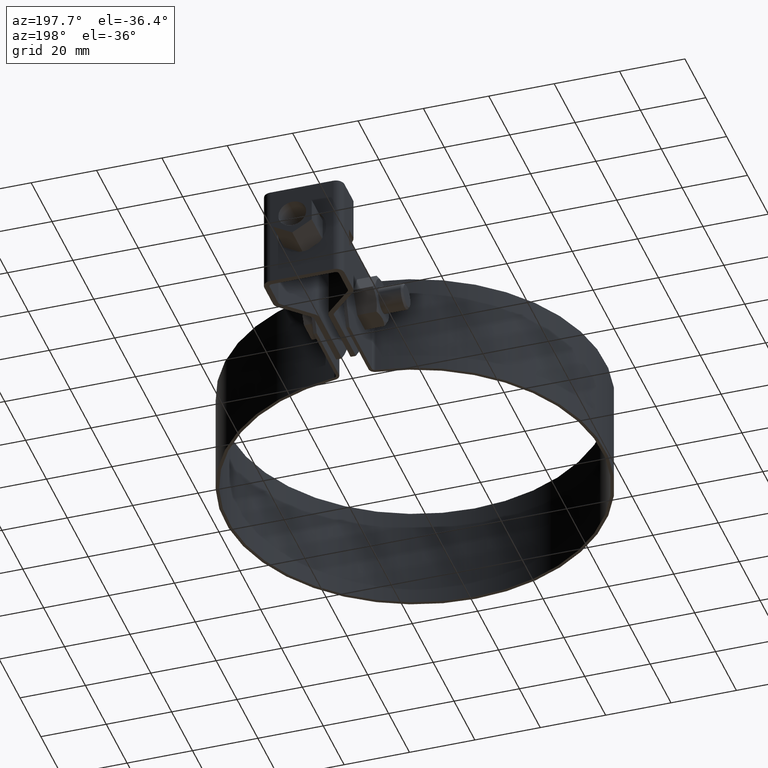
[diagram: clean part render]
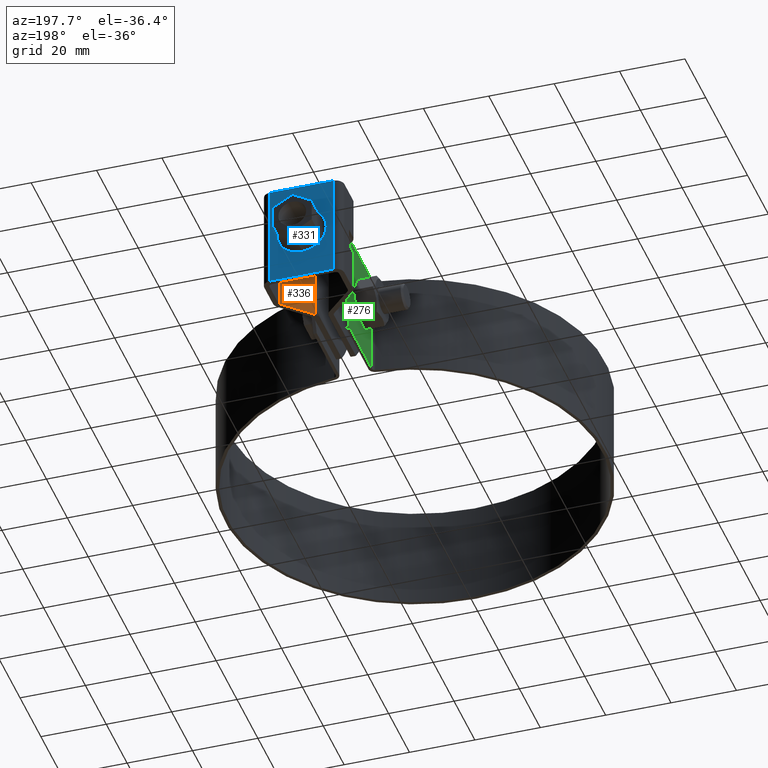
[diagram: same view with three faces highlighted in distinct colors, each labeled with its STEP entity id]
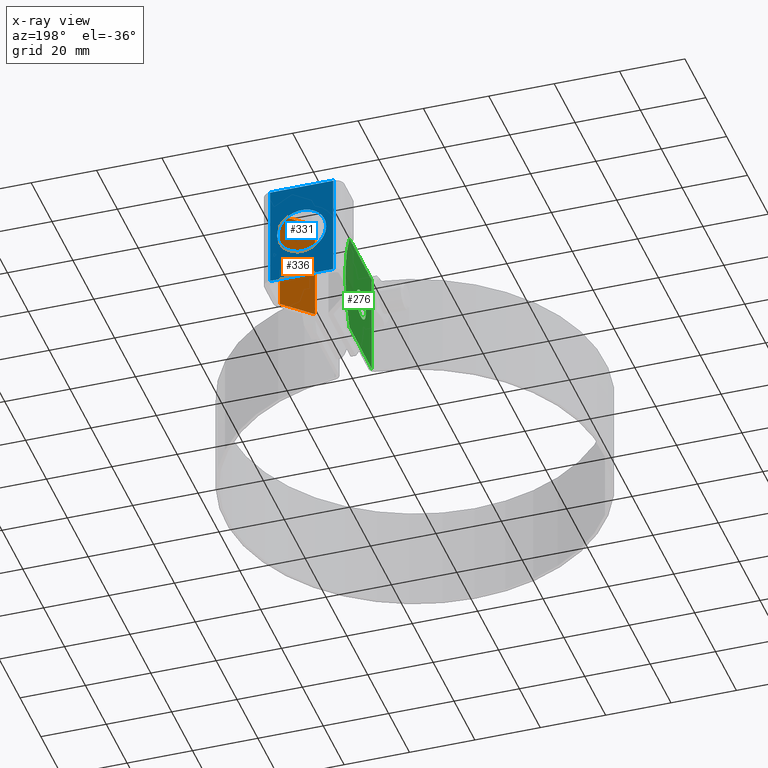
[diagram: x-ray of the same camera — body ghosted, the three highlighted faces saturated]
A machine part, auxiliary view with three faces highlighted in distinct colors.
The next image is the same camera in x-ray (body ghosted, the three faces saturated) — at least one of them is partly hidden behind the body in this view.
Their STEP definitions:

[orange] entity #336 — the highlighted planar face has unit normal (-0.6983, 0.7158, 0).
#336 = ADVANCED_FACE( '', ( #539 ), #540, .T. );
#539 = FACE_OUTER_BOUND( '', #795, .T. );
#540 = PLANE( '', #796 );
#795 = EDGE_LOOP( '', ( #1429, #1430, #1431, #1432, #1433, #1434 ) );
#796 = AXIS2_PLACEMENT_3D( '', #1435, #1436, #1437 );
#1429 = ORIENTED_EDGE( '', *, *, #2004, .F. );
#1430 = ORIENTED_EDGE( '', *, *, #2005, .F. );
#1431 = ORIENTED_EDGE( '', *, *, #2006, .T. );
#1432 = ORIENTED_EDGE( '', *, *, #2007, .T. );
#1433 = ORIENTED_EDGE( '', *, *, #2002, .F. );
#1434 = ORIENTED_EDGE( '', *, *, #1985, .F. );
#1435 = CARTESIAN_POINT( '', ( 10.3483238355307, 97.1025829885848, -12.4999999999805 ) );
#1436 = DIRECTION( '', ( -0.698323835530498, 0.715781964518508, 9.95351192862969E-014 ) );
#1437 = DIRECTION( '', ( 0.715781964518508, 0.698323835530498, 1.02350403863766E-013 ) );
#1985 = EDGE_CURVE( '', #2394, #2388, #2396, .T. );
#2002 = EDGE_CURVE( '', #2388, #2424, #2425, .T. );
#2004 = EDGE_CURVE( '', #2427, #2394, #2428, .T. );
#2005 = EDGE_CURVE( '', #2429, #2427, #2430, .T. );
#2006 = EDGE_CURVE( '', #2429, #2431, #2432, .F. );
#2007 = EDGE_CURVE( '', #2431, #2424, #2433, .T. );
#2388 = VERTEX_POINT( '', #3053 );
#2394 = VERTEX_POINT( '', #3066 );
#2396 = ELLIPSE( '', #3073, 5.93756228945901, 4.24999999999996 );
#2424 = VERTEX_POINT( '', #3113 );
#2425 = LINE( '', #3114, #3115 );
#2427 = VERTEX_POINT( '', #3117 );
#2428 = LINE( '', #3118, #3119 );
#2429 = VERTEX_POINT( '', #3120 );
#2430 = LINE( '', #3121, #3122 );
#2431 = VERTEX_POINT( '', #3123 );
#2432 = LINE( '', #3124, #3125 );
#2433 = LINE( '', #3126, #3127 );
#3053 = CARTESIAN_POINT( '', ( 10.3483238355306, 97.1025829885825, 3.80080619943145 ) );
#3066 = CARTESIAN_POINT( '', ( 10.3483238355306, 97.1025829885836, -3.80080619939251 ) );
#3073 = AXIS2_PLACEMENT_3D( '', #3656, #3657, #3658 );
#3113 = CARTESIAN_POINT( '', ( 10.3483238355306, 97.1025829885808, 16.0000000000195 ) );
#3114 = CARTESIAN_POINT( '', ( 10.3483238355307, 97.1025829885848, -12.4999999999805 ) );
#3115 = VECTOR( '', #3683, 1000.00000000000 );
#3117 = CARTESIAN_POINT( '', ( 10.3483238355307, 97.1025829885853, -15.9999999999805 ) );
#3118 = CARTESIAN_POINT( '', ( 10.3483238355307, 97.1025829885848, -12.4999999999805 ) );
#3119 = VECTOR( '', #3687, 1000.00000000000 );
#3120 = CARTESIAN_POINT( '', ( 2.18435802762084, 89.1377386662581, -15.9999999999817 ) );
#3121 = CARTESIAN_POINT( '', ( 2.18435802762085, 89.1377386662581, -15.9999999999817 ) );
#3122 = VECTOR( '', #3688, 1000.00000000000 );
#3123 = CARTESIAN_POINT( '', ( 2.18435802762072, 89.1377386662536, 16.0000000000183 ) );
#3124 = CARTESIAN_POINT( '', ( 2.18435802762083, 89.1377386662576, -12.4999999999817 ) );
#3125 = VECTOR( '', #3689, 1000.00000000000 );
#3126 = CARTESIAN_POINT( '', ( 2.18435802762072, 89.1377386662536, 16.0000000000183 ) );
#3127 = VECTOR( '', #3690, 1000.00000000000 );
#3656 = CARTESIAN_POINT( '', ( 12.2500000000001, 98.9578767217836, 1.97342142627122E-011 ) );
#3657 = DIRECTION( '', ( -0.698323835530498, 0.715781964518508, 9.95351192862970E-014 ) );
#3658 = DIRECTION( '', ( 0.715781964518508, 0.698323835530498, 1.02350403863766E-013 ) );
#3683 = DIRECTION( '', ( -3.75282687687682E-015, -1.42719169815570E-013, 1.00000000000000 ) );
#3687 = DIRECTION( '', ( -3.75282687687682E-015, -1.42719169815570E-013, 1.00000000000000 ) );
#3688 = DIRECTION( '', ( 0.715781964518507, 0.698323835530498, 1.02350403863766E-013 ) );
#3689 = DIRECTION( '', ( 3.69159655918571E-015, 1.42659432923024E-013, -1.00000000000000 ) );
#3690 = DIRECTION( '', ( 0.715781964518507, 0.698323835530498, 1.02350403863766E-013 ) );

[blue] entity #331 — the highlighted planar face has unit normal (0, 1, 0).
#331 = ADVANCED_FACE( '', ( #527, #528 ), #529, .T. );
#527 = FACE_BOUND( '', #783, .T. );
#528 = FACE_OUTER_BOUND( '', #784, .T. );
#529 = PLANE( '', #785 );
#783 = EDGE_LOOP( '', ( #1389 ) );
#784 = EDGE_LOOP( '', ( #1390, #1391, #1392, #1393 ) );
#785 = AXIS2_PLACEMENT_3D( '', #1394, #1395, #1396 );
#1389 = ORIENTED_EDGE( '', *, *, #1991, .F. );
#1390 = ORIENTED_EDGE( '', *, *, #1952, .F. );
#1391 = ORIENTED_EDGE( '', *, *, #1992, .F. );
#1392 = ORIENTED_EDGE( '', *, *, #1993, .T. );
#1393 = ORIENTED_EDGE( '', *, *, #1994, .T. );
#1394 = CARTESIAN_POINT( '', ( 9.65000000000020, 108.722559184213, -12.4999999999789 ) );
#1395 = DIRECTION( '', ( 3.63293213424916E-015, 1.00000000000000, 1.42719169815570E-013 ) );
#1396 = DIRECTION( '', ( 1.00000000000000, -3.63293213424969E-015, 3.75282687687631E-015 ) );
#1952 = EDGE_CURVE( '', #2335, #2336, #2337, .T. );
#1991 = EDGE_CURVE( '', #2406, #2406, #2407, .T. );
#1992 = EDGE_CURVE( '', #2408, #2335, #2409, .T. );
#1993 = EDGE_CURVE( '', #2408, #2410, #2411, .T. );
#1994 = EDGE_CURVE( '', #2410, #2336, #2412, .T. );
#2335 = VERTEX_POINT( '', #2967 );
#2336 = VERTEX_POINT( '', #2968 );
#2337 = LINE( '', #2969, #2970 );
#2406 = VERTEX_POINT( '', #3087 );
#2407 = CIRCLE( '', #3088, 7.50000000000000 );
#2408 = VERTEX_POINT( '', #3089 );
#2409 = LINE( '', #3090, #3091 );
#2410 = VERTEX_POINT( '', #3092 );
#2411 = LINE( '', #3093, #3094 );
#2412 = LINE( '', #3095, #3096 );
#2967 = CARTESIAN_POINT( '', ( 9.65000000000021, 108.722559184214, -15.9999999999789 ) );
#2968 = CARTESIAN_POINT( '', ( 9.65000000000009, 108.722559184209, 16.0000000000211 ) );
#2969 = CARTESIAN_POINT( '', ( 9.65000000000020, 108.722559184213, -12.4999999999789 ) );
#2970 = VECTOR( '', #3607, 1000.00000000000 );
#3087 = CARTESIAN_POINT( '', ( -7.49999999999985, 108.722569184211, 2.10804282814919E-011 ) );
#3088 = AXIS2_PLACEMENT_3D( '', #3666, #3667, #3668 );
#3089 = CARTESIAN_POINT( '', ( -9.64999999999992, 108.722559184214, -15.9999999999790 ) );
#3090 = CARTESIAN_POINT( '', ( -9.64999999999977, 108.722559184214, -15.9999999999789 ) );
#3091 = VECTOR( '', #3669, 1000.00000000000 );
#3092 = CARTESIAN_POINT( '', ( -9.65000000000004, 108.722559184209, 16.0000000000210 ) );
#3093 = CARTESIAN_POINT( '', ( -9.64999999999979, 108.722559184214, -12.4999999999790 ) );
#3094 = VECTOR( '', #3670, 1000.00000000000 );
#3095 = CARTESIAN_POINT( '', ( -9.64999999999989, 108.722559184209, 16.0000000000211 ) );
#3096 = VECTOR( '', #3671, 1000.00000000000 );
#3607 = DIRECTION( '', ( -3.75282687687682E-015, -1.42719169815570E-013, 1.00000000000000 ) );
#3666 = CARTESIAN_POINT( '', ( 1.52014870159456E-013, 108.722569184211, 2.11081152556858E-011 ) );
#3667 = DIRECTION( '', ( 3.63293213424916E-015, 1.00000000000000, 1.42719169815570E-013 ) );
#3668 = DIRECTION( '', ( -1.00000000000000, 3.63293213424968E-015, -3.69159655918519E-015 ) );
#3669 = DIRECTION( '', ( 1.00000000000000, -3.63293213424969E-015, 3.75282687687631E-015 ) );
#3670 = DIRECTION( '', ( -3.75282687687682E-015, -1.42719169815570E-013, 1.00000000000000 ) );
#3671 = DIRECTION( '', ( 1.00000000000000, -3.63293213424969E-015, 3.75282687687631E-015 ) );

[green] entity #276 — the highlighted planar face has unit normal (-1, 0, 0).
#276 = ADVANCED_FACE( '', ( #405, #406 ), #407, .T. );
#405 = FACE_OUTER_BOUND( '', #661, .T. );
#406 = FACE_BOUND( '', #662, .T. );
#407 = PLANE( '', #663 );
#661 = EDGE_LOOP( '', ( #970, #971, #972, #973, #974, #975 ) );
#662 = EDGE_LOOP( '', ( #976 ) );
#663 = AXIS2_PLACEMENT_3D( '', #977, #978, #979 );
#970 = ORIENTED_EDGE( '', *, *, #1844, .T. );
#971 = ORIENTED_EDGE( '', *, *, #1860, .T. );
#972 = ORIENTED_EDGE( '', *, *, #1834, .T. );
#973 = ORIENTED_EDGE( '', *, *, #1861, .T. );
#974 = ORIENTED_EDGE( '', *, *, #1862, .F. );
#975 = ORIENTED_EDGE( '', *, *, #1842, .T. );
#976 = ORIENTED_EDGE( '', *, *, #1852, .T. );
#977 = CARTESIAN_POINT( '', ( -5.50000000000000, 83.9725591842248, -16.0000000000000 ) );
#978 = DIRECTION( '', ( -1.00000000000000, 6.06692130572647E-017, 0.000000000000000 ) );
#979 = DIRECTION( '', ( -6.06692130572647E-017, -1.00000000000000, 0.000000000000000 ) );
#1834 = EDGE_CURVE( '', #2140, #2138, #2141, .T. );
#1842 = EDGE_CURVE( '', #2150, #2152, #2154, .T. );
#1844 = EDGE_CURVE( '', #2152, #2155, #2157, .T. );
#1852 = EDGE_CURVE( '', #2171, #2171, #2172, .F. );
#1860 = EDGE_CURVE( '', #2155, #2140, #2184, .T. );
#1861 = EDGE_CURVE( '', #2138, #2185, #2186, .T. );
#1862 = EDGE_CURVE( '', #2150, #2185, #2187, .T. );
#2138 = VERTEX_POINT( '', #2637 );
#2140 = VERTEX_POINT( '', #2639 );
#2141 = LINE( '', #2640, #2641 );
#2150 = VERTEX_POINT( '', #2652 );
#2152 = VERTEX_POINT( '', #2655 );
#2154 = LINE( '', #2658, #2659 );
#2155 = VERTEX_POINT( '', #2660 );
#2157 = CIRCLE( '', #2663, 35.0000000000000 );
#2171 = VERTEX_POINT( '', #2681 );
#2172 = CIRCLE( '', #2682, 4.50000000000000 );
#2184 = LINE( '', #2700, #2701 );
#2185 = VERTEX_POINT( '', #2702 );
#2186 = LINE( '', #2703, #2704 );
#2187 = LINE( '', #2705, #2706 );
#2637 = CARTESIAN_POINT( '', ( -5.50000000000000, 58.7917723835572, -16.0000000000000 ) );
#2639 = CARTESIAN_POINT( '', ( -5.50000000000000, 80.1209941368834, -16.0000000000000 ) );
#2640 = CARTESIAN_POINT( '', ( -5.50000000000000, 83.9725591842248, -16.0000000000000 ) );
#2641 = VECTOR( '', #3419, 1000.00000000000 );
#2652 = CARTESIAN_POINT( '', ( -5.50000000000000, 80.1209941368834, 16.0000000000000 ) );
#2655 = CARTESIAN_POINT( '', ( -5.50000000000000, 80.5953357859086, 15.0000000000000 ) );
#2658 = CARTESIAN_POINT( '', ( -5.49999999999999, 93.2193899772589, -11.6138430333747 ) );
#2659 = VECTOR( '', #3433, 1000.00000000000 );
#2660 = CARTESIAN_POINT( '', ( -5.49999999999999, 80.5953357859087, -15.0000000000000 ) );
#2663 = AXIS2_PLACEMENT_3D( '', #3435, #3436, #3437 );
#2681 = CARTESIAN_POINT( '', ( -5.49999999999999, 64.4725591842248, -8.67361737988404E-016 ) );
#2682 = AXIS2_PLACEMENT_3D( '', #3451, #3452, #3453 );
#2700 = CARTESIAN_POINT( '', ( -5.50000000000000, 80.8284244517012, -14.5086059462172 ) );
#2701 = VECTOR( '', #3463, 1000.00000000000 );
#2702 = CARTESIAN_POINT( '', ( -5.50000000000000, 58.7917723835572, 16.0000000000000 ) );
#2703 = CARTESIAN_POINT( '', ( -5.50000000000000, 58.7917723835572, -16.0000000000000 ) );
#2704 = VECTOR( '', #3464, 1000.00000000000 );
#2705 = CARTESIAN_POINT( '', ( -5.50000000000000, 83.9725591842248, 16.0000000000000 ) );
#2706 = VECTOR( '', #3465, 1000.00000000000 );
#3419 = DIRECTION( '', ( -6.06692130572647E-017, -1.00000000000000, 0.000000000000000 ) );
#3433 = DIRECTION( '', ( 2.60010913102563E-017, 0.428571428571429, -0.903507902905251 ) );
#3435 = CARTESIAN_POINT( '', ( -5.49999999999999, 48.9725591842248, -3.50147814956159E-031 ) );
#3436 = DIRECTION( '', ( -1.00000000000000, 6.06692130572647E-017, 0.000000000000000 ) );
#3437 = DIRECTION( '', ( -6.06692130572647E-017, -1.00000000000000, 0.000000000000000 ) );
#3451 = CARTESIAN_POINT( '', ( -5.49999999999999, 68.9725591842248, -8.67361737988404E-016 ) );
#3452 = DIRECTION( '', ( -1.00000000000000, 6.06692130572647E-017, 0.000000000000000 ) );
#3453 = DIRECTION( '', ( -6.06692130572647E-017, -1.00000000000000, 0.000000000000000 ) );
#3463 = DIRECTION( '', ( -2.60010913102563E-017, -0.428571428571428, -0.903507902905251 ) );
#3464 = DIRECTION( '', ( 0.000000000000000, 0.000000000000000, 1.00000000000000 ) );
#3465 = DIRECTION( '', ( -6.06692130572647E-017, -1.00000000000000, 0.000000000000000 ) );